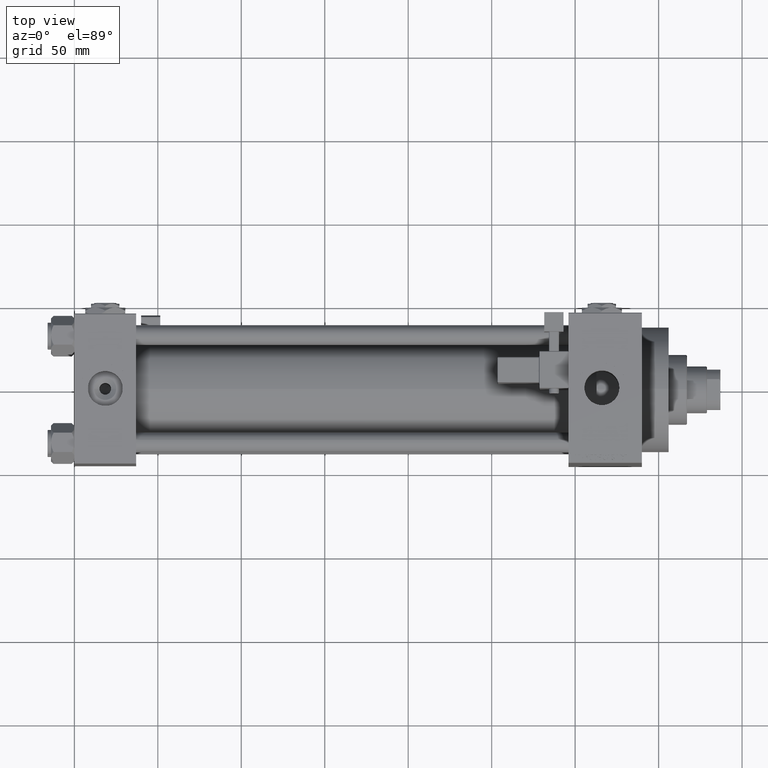
[diagram: clean part render]
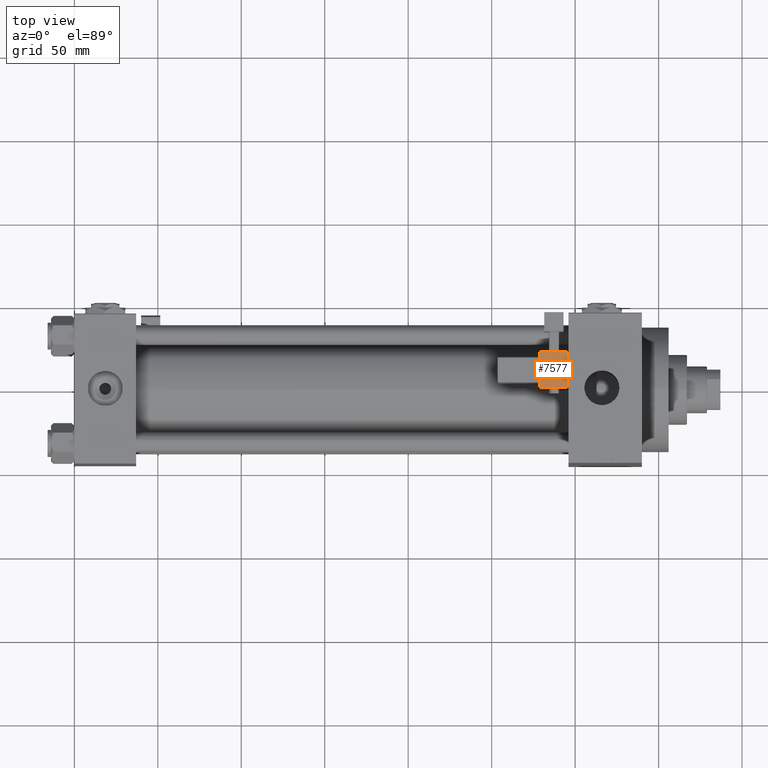
[diagram: same view with one face highlighted and labeled with its STEP entity id]
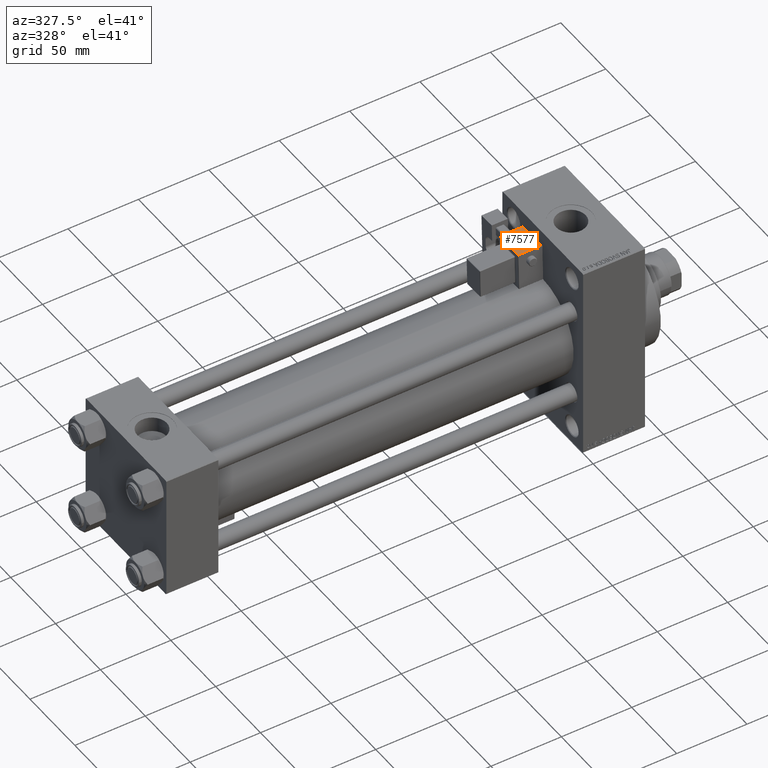
[diagram: same view with one face highlighted and labeled with its STEP entity id]
A machine part, top view. The second image highlights one B-rep face of the part: STEP entity #7577.
A second angle (auxiliary view) of the same face is appended — the face is thin or edge-on in the first view.
In plain terms, the highlighted planar face has unit normal (0, -0.0353, -0.9994).
Its self-contained STEP definition (entity closure, byte-faithful):
#235 = ORIENTED_EDGE ( 'NONE', *, *, #47979, .T. ) ;
#2592 = VECTOR ( 'NONE', #50763, 1000.000000000000000 ) ;
#4113 = ORIENTED_EDGE ( 'NONE', *, *, #49121, .T. ) ;
#6118 = CARTESIAN_POINT ( 'NONE',  ( -8.250000000000003553, -39.25000000000000000, -1.000000000000000222 ) ) ;
#6560 = EDGE_CURVE ( 'NONE', #26613, #32876, #21676, .T. ) ;
#7577 = ADVANCED_FACE ( 'NONE', ( #31896 ), #36582, .F. ) ;
#13107 = DIRECTION ( 'NONE',  ( -0.000000000000000000, 1.000000000000000000, 0.000000000000000000 ) ) ;
#14210 = CARTESIAN_POINT ( 'NONE',  ( 8.250000000000003553, -39.25000000000000000, -1.000000000000000222 ) ) ;
#14844 = ORIENTED_EDGE ( 'NONE', *, *, #6560, .T. ) ;
#15069 = DIRECTION ( 'NONE',  ( -0.000000000000000000, -1.000000000000000000, -0.000000000000000000 ) ) ;
#16419 = EDGE_LOOP ( 'NONE', ( #235, #29966, #4113, #14844 ) ) ;
#16773 = CARTESIAN_POINT ( 'NONE',  ( 8.750000000000003553, -39.75000000000000000, -1.000000000000000222 ) ) ;
#17052 = AXIS2_PLACEMENT_3D ( 'NONE', #16773, #40740, #36838 ) ;
#20442 = VERTEX_POINT ( 'NONE', #26249 ) ;
#20544 = DIRECTION ( 'NONE',  ( -1.000000000000000000, -0.000000000000000000, 0.000000000000000000 ) ) ;
#21295 = CARTESIAN_POINT ( 'NONE',  ( 8.750000000000003553, -39.25000000000000000, -1.000000000000000222 ) ) ;
#21676 = LINE ( 'NONE', #25336, #48638 ) ;
#25336 = CARTESIAN_POINT ( 'NONE',  ( -8.250000000000003553, -39.75000000000000000, -1.000000000000000222 ) ) ;
#26249 = CARTESIAN_POINT ( 'NONE',  ( 8.250000000000003553, -18.25000000000000355, -1.000000000000000222 ) ) ;
#26613 = VERTEX_POINT ( 'NONE', #6118 ) ;
#27263 = EDGE_CURVE ( 'NONE', #20442, #36588, #34113, .T. ) ;
#29966 = ORIENTED_EDGE ( 'NONE', *, *, #27263, .T. ) ;
#30197 = CARTESIAN_POINT ( 'NONE',  ( 8.250000000000003553, -39.75000000000000000, -1.000000000000000222 ) ) ;
#30697 = CARTESIAN_POINT ( 'NONE',  ( 8.750000000000003553, -18.25000000000000355, -1.000000000000000222 ) ) ;
#31719 = VECTOR ( 'NONE', #20544, 1000.000000000000000 ) ;
#31896 = FACE_OUTER_BOUND ( 'NONE', #16419, .T. ) ;
#32876 = VERTEX_POINT ( 'NONE', #40483 ) ;
#34113 = LINE ( 'NONE', #30197, #35543 ) ;
#34357 = LINE ( 'NONE', #30697, #2592 ) ;
#35543 = VECTOR ( 'NONE', #15069, 1000.000000000000000 ) ;
#36582 = PLANE ( 'NONE',  #17052 ) ;
#36588 = VERTEX_POINT ( 'NONE', #14210 ) ;
#36838 = DIRECTION ( 'NONE',  ( 1.000000000000000000, 0.000000000000000000, -0.000000000000000000 ) ) ;
#40483 = CARTESIAN_POINT ( 'NONE',  ( -8.250000000000003553, -18.25000000000000355, -1.000000000000000222 ) ) ;
#40740 = DIRECTION ( 'NONE',  ( 0.000000000000000000, 0.000000000000000000, 1.000000000000000000 ) ) ;
#47979 = EDGE_CURVE ( 'NONE', #32876, #20442, #34357, .T. ) ;
#48638 = VECTOR ( 'NONE', #13107, 1000.000000000000000 ) ;
#48672 = LINE ( 'NONE', #21295, #31719 ) ;
#49121 = EDGE_CURVE ( 'NONE', #36588, #26613, #48672, .T. ) ;
#50763 = DIRECTION ( 'NONE',  ( 1.000000000000000000, -0.000000000000000000, 0.000000000000000000 ) ) ;